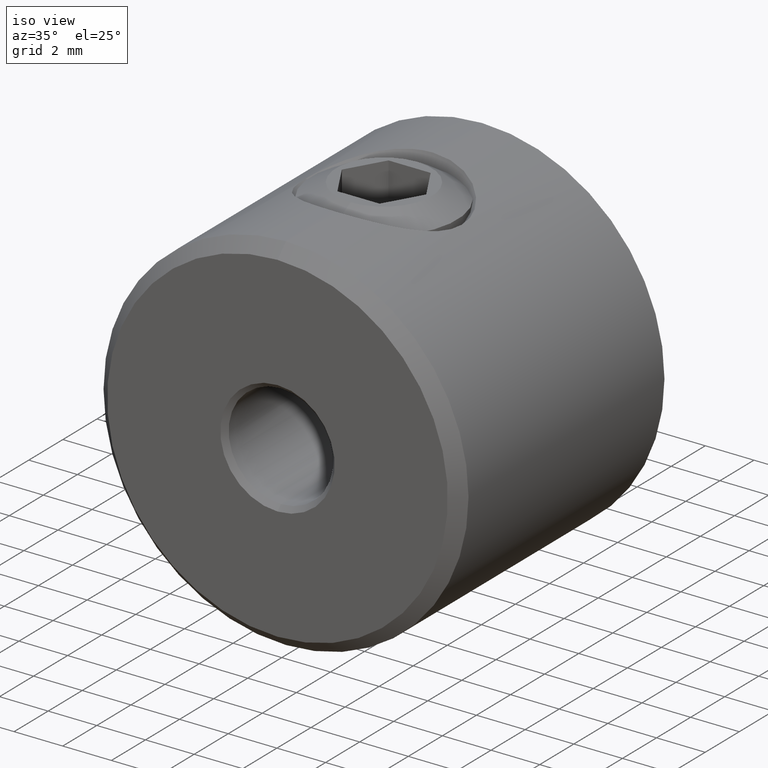
[diagram: clean part render]
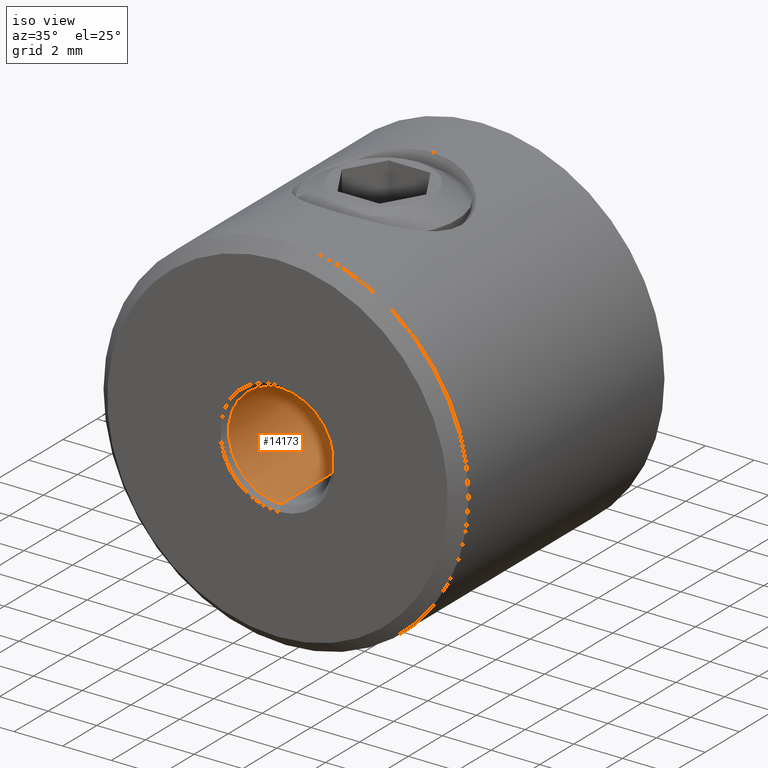
[diagram: same view with one face highlighted and labeled with its STEP entity id]
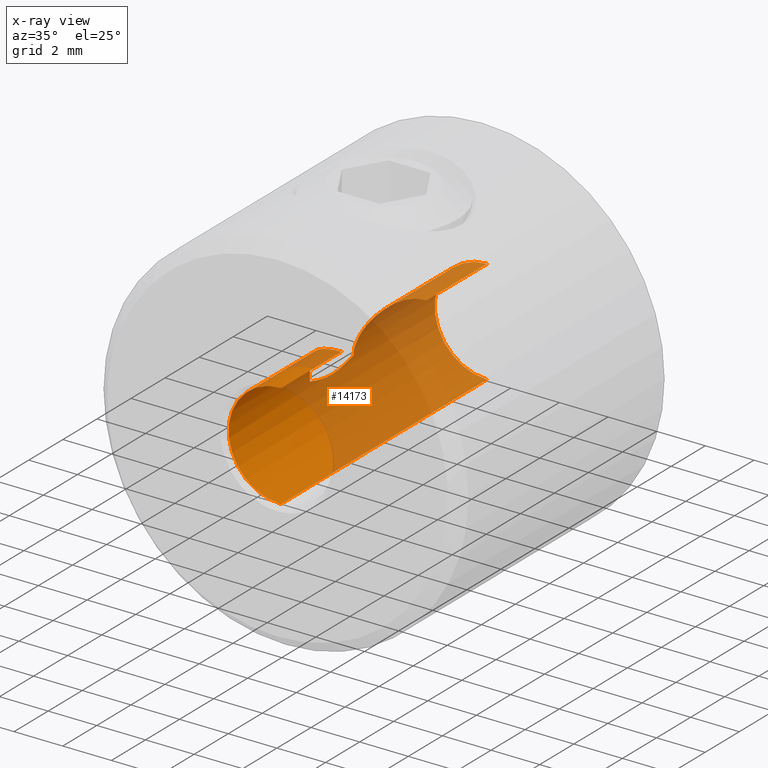
[diagram: x-ray of the same camera — body ghosted, the highlighted face saturated]
A machine part, iso view. The second image highlights one B-rep face of the part: STEP entity #14173.
The next image is the same camera in x-ray: the body ghosted, the highlighted face saturated — about 65% of this face is hidden behind the body in this view.
In plain terms, the highlighted cylindrical surface (partial cylindrical patch) has radius 2.15 mm, axis along (0, 1, 0).
Its self-contained STEP definition (entity closure, byte-faithful):
#385 = ORIENTED_EDGE ( 'NONE', *, *, #3057, .T. ) ;
#676 = ORIENTED_EDGE ( 'NONE', *, *, #3961, .T. ) ;
#988 = CARTESIAN_POINT ( 'NONE',  ( 2.632990618166809200E-016, -6.050000000000001600, -2.149999999999999900 ) ) ;
#1004 = CARTESIAN_POINT ( 'NONE',  ( -1.925094772295568500, -1.597348061521473900, 0.9668528837654856200 ) ) ;
#1033 = CARTESIAN_POINT ( 'NONE',  ( -0.7348609064993940600, 2.393686039498629900, 2.025643330185193500 ) ) ;
#1055 = CARTESIAN_POINT ( 'NONE',  ( -2.073432384459298100, -1.397848318693016800, 0.5869928898129031000 ) ) ;
#1357 = ORIENTED_EDGE ( 'NONE', *, *, #14928, .F. ) ;
#1378 = CARTESIAN_POINT ( 'NONE',  ( -2.139000041888230900, -0.2141850294312000700, -0.2172070987622273000 ) ) ;
#1596 = CARTESIAN_POINT ( 'NONE',  ( 2.632990618166809200E-016, -6.250000000000000000, -2.149999999999999900 ) ) ;
#1620 = EDGE_CURVE ( 'NONE', #12542, #15533, #3403, .T. ) ;
#1989 = CARTESIAN_POINT ( 'NONE',  ( 0.0000000000000000000, 6.050000000000001600, 0.0000000000000000000 ) ) ;
#2002 = LINE ( 'NONE', #7970, #8101 ) ;
#2053 = CARTESIAN_POINT ( 'NONE',  ( -2.133625432114932200, -1.304125872157222200, 0.3022002995495620100 ) ) ;
#2159 = CARTESIAN_POINT ( 'NONE',  ( -1.861254997223449300, -1.672288516034286200, 1.084149552491637600 ) ) ;
#2183 = CARTESIAN_POINT ( 'NONE',  ( -0.3032929259899027600, 2.485946836238646100, 2.133703790690577100 ) ) ;
#2208 = CARTESIAN_POINT ( 'NONE',  ( -1.534683074066103200E-019, -2.499999999999998200, 2.149999999999999900 ) ) ;
#2358 = CARTESIAN_POINT ( 'NONE',  ( -2.030406667663600100, 1.461125859006563200, 0.7197494875596474100 ) ) ;
#2406 = CARTESIAN_POINT ( 'NONE',  ( -2.133261416621418800, 1.304703684789853000, 0.3041509722993741000 ) ) ;
#2717 = EDGE_LOOP ( 'NONE', ( #14949, #13228, #676, #7683, #9670, #5769, #385, #1357 ) ) ;
#2732 = CARTESIAN_POINT ( 'NONE',  ( -2.147106445970275300, -0.8589273310922657100, -0.1180105889439460500 ) ) ;
#2887 = DIRECTION ( 'NONE',  ( -0.0000000000000000000, -1.000000000000000000, -0.0000000000000000000 ) ) ;
#3057 = EDGE_CURVE ( 'NONE', #7898, #5268, #13316, .T. ) ;
#3181 = CARTESIAN_POINT ( 'NONE',  ( 0.0000000000000000000, 6.050000000000001600, 2.149999999999999900 ) ) ;
#3281 = CARTESIAN_POINT ( 'NONE',  ( -0.9994511090636991600, -2.295882470373532300, 1.909079951299912600 ) ) ;
#3331 = CARTESIAN_POINT ( 'NONE',  ( -2.150000000000000400, -1.275735082217304100, 0.1537928784693634000 ) ) ;
#3371 = VERTEX_POINT ( 'NONE', #988 ) ;
#3403 = B_SPLINE_CURVE_WITH_KNOTS ( 'NONE', 3,
 ( #8488, #9619, #2183, #13215, #1033, #10674, #5915, #8435, #10728, #2358, #3640, #2406, #10845, #12070 ),
 .UNSPECIFIED., .F., .F.,
 ( 4, 2, 2, 2, 2, 2, 4 ),
 ( 0.003626857427847185500, 0.004079388854353354300, 0.004531920280859523200, 0.005436983133871860900, 0.006342045986884198600, 0.006794577413390367500, 0.007247108839896536400 ),
 .UNSPECIFIED. ) ;
#3434 = VECTOR ( 'NONE', #6657, 1000.000000000000000 ) ;
#3640 = CARTESIAN_POINT ( 'NONE',  ( -2.073504347843119000, 1.397725186231372000, 0.5864228892803885500 ) ) ;
#3800 = CARTESIAN_POINT ( 'NONE',  ( 2.632990618166809200E-016, 6.050000000000001600, -2.149999999999999900 ) ) ;
#3961 = EDGE_CURVE ( 'NONE', #4140, #8645, #6516, .T. ) ;
#4140 = VERTEX_POINT ( 'NONE', #3800 ) ;
#4487 = DIRECTION ( 'NONE',  ( 0.0000000000000000000, 1.000000000000000000, 0.0000000000000000000 ) ) ;
#4501 = CARTESIAN_POINT ( 'NONE',  ( -2.149999999999999900, -1.275735082217303000, 0.0000000000000000000 ) ) ;
#4611 = CARTESIAN_POINT ( 'NONE',  ( -1.120857853187716500, -2.238368832229897800, 1.839814015174059400 ) ) ;
#5102 = CYLINDRICAL_SURFACE ( 'NONE', #14484, 2.149999999999999900 ) ;
#5232 = CARTESIAN_POINT ( 'NONE',  ( 0.0000000000000000000, -6.050000000000001600, 0.0000000000000000000 ) ) ;
#5268 = VERTEX_POINT ( 'NONE', #15350 ) ;
#5616 = AXIS2_PLACEMENT_3D ( 'NONE', #1989, #4487, #8116 ) ;
#5673 = CARTESIAN_POINT ( 'NONE',  ( -0.1506947970163635100, -2.499999999999999100, 2.150000000000000800 ) ) ;
#5769 = ORIENTED_EDGE ( 'NONE', *, *, #5937, .T. ) ;
#5915 = CARTESIAN_POINT ( 'NONE',  ( -1.356577628608072400, 2.112901725161469900, 1.688750181768103400 ) ) ;
#5937 = EDGE_CURVE ( 'NONE', #15533, #7898, #11051, .T. ) ;
#6001 = CARTESIAN_POINT ( 'NONE',  ( 0.0000000000000000000, -6.250000000000000000, 0.0000000000000000000 ) ) ;
#6516 = CIRCLE ( 'NONE', #5616, 2.149999999999999900 ) ;
#6657 = DIRECTION ( 'NONE',  ( -0.0000000000000000000, 1.000000000000000000, -0.0000000000000000000 ) ) ;
#6934 = CARTESIAN_POINT ( 'NONE',  ( -1.633930095200460100, -1.895808714738955700, 1.403707909107325900 ) ) ;
#6975 = CARTESIAN_POINT ( 'NONE',  ( -2.149999999999999900, 0.8630632229863820500, -0.1265316249699096600 ) ) ;
#7188 = AXIS2_PLACEMENT_3D ( 'NONE', #5232, #2887, #15075 ) ;
#7292 = LINE ( 'NONE', #1596, #12921 ) ;
#7683 = ORIENTED_EDGE ( 'NONE', *, *, #12364, .F. ) ;
#7743 = CARTESIAN_POINT ( 'NONE',  ( -2.149999999999999900, -1.275735082217303000, 0.0000000000000000000 ) ) ;
#7898 = VERTEX_POINT ( 'NONE', #7743 ) ;
#7962 = CARTESIAN_POINT ( 'NONE',  ( 1.534683074066103200E-019, 2.499999999999998200, 2.149999999999999900 ) ) ;
#7970 = CARTESIAN_POINT ( 'NONE',  ( 0.0000000000000000000, -6.250000000000000000, 2.149999999999999900 ) ) ;
#8101 = VECTOR ( 'NONE', #12649, 1000.000000000000000 ) ;
#8116 = DIRECTION ( 'NONE',  ( 0.0000000000000000000, 0.0000000000000000000, 1.000000000000000000 ) ) ;
#8129 = CARTESIAN_POINT ( 'NONE',  ( -0.3035271358532746800, -2.485936835032056100, 2.133692548175958800 ) ) ;
#8207 = VERTEX_POINT ( 'NONE', #9727 ) ;
#8344 = DIRECTION ( 'NONE',  ( 0.0000000000000000000, 0.0000000000000000000, 1.000000000000000000 ) ) ;
#8420 = EDGE_CURVE ( 'NONE', #3371, #4140, #7292, .T. ) ;
#8435 = CARTESIAN_POINT ( 'NONE',  ( -1.724806660935309900, 1.824746159065254100, 1.310428182410196000 ) ) ;
#8488 = CARTESIAN_POINT ( 'NONE',  ( 1.534683074066103200E-019, 2.499999999999998200, 2.149999999999999900 ) ) ;
#8645 = VERTEX_POINT ( 'NONE', #3181 ) ;
#8752 = CARTESIAN_POINT ( 'NONE',  ( -2.141480535074975900, -0.4329430049667804500, -0.1950735946380157400 ) ) ;
#9323 = CARTESIAN_POINT ( 'NONE',  ( -2.149999999999999900, 1.275735082217303000, 0.0000000000000000000 ) ) ;
#9382 = CARTESIAN_POINT ( 'NONE',  ( -1.345136824093966300, -2.111213935302910900, 1.682808623091129900 ) ) ;
#9484 = CARTESIAN_POINT ( 'NONE',  ( -0.5954120746587005000, -2.432590210314739200, 2.071293574965058500 ) ) ;
#9619 = CARTESIAN_POINT ( 'NONE',  ( -0.1504203191165433600, 2.499999999999998700, 2.149999999999999900 ) ) ;
#9670 = ORIENTED_EDGE ( 'NONE', *, *, #1620, .T. ) ;
#9727 = CARTESIAN_POINT ( 'NONE',  ( 0.0000000000000000000, -6.050000000000001600, 2.149999999999999900 ) ) ;
#10532 = CARTESIAN_POINT ( 'NONE',  ( -2.031087096408396200, -1.460204067508870100, 0.7179690717354574300 ) ) ;
#10562 = CARTESIAN_POINT ( 'NONE',  ( -2.149999999999999900, -1.275735082217303000, 0.0000000000000000000 ) ) ;
#10607 = EDGE_CURVE ( 'NONE', #8207, #3371, #14161, .T. ) ;
#10646 = CARTESIAN_POINT ( 'NONE',  ( -1.715908765832581600, -1.821119477927883200, 1.302039755228690000 ) ) ;
#10674 = CARTESIAN_POINT ( 'NONE',  ( -1.130353194561114500, 2.247513133645970800, 1.851433895023591100 ) ) ;
#10728 = CARTESIAN_POINT ( 'NONE',  ( -1.872107930195030100, 1.665824704313992400, 1.090905193608320100 ) ) ;
#10845 = CARTESIAN_POINT ( 'NONE',  ( -2.149999999999999900, 1.275735082217303300, 0.1534745132368854900 ) ) ;
#10877 = DIRECTION ( 'NONE',  ( -0.0000000000000000000, 1.000000000000000000, -0.0000000000000000000 ) ) ;
#11051 = B_SPLINE_CURVE_WITH_KNOTS ( 'NONE', 3,
 ( #9323, #6975, #14714, #1378, #8752, #2732, #12901, #10562 ),
 .UNSPECIFIED., .F., .F.,
 ( 4, 2, 2, 4 ),
 ( 0.0004669633346895036900, 0.001755633770039169100, 0.002399968987714002300, 0.003044304205388833800 ),
 .UNSPECIFIED. ) ;
#11141 = CARTESIAN_POINT ( 'NONE',  ( 0.0000000000000000000, -6.250000000000000000, 2.149999999999999900 ) ) ;
#11277 = DIRECTION ( 'NONE',  ( -0.0000000000000000000, 1.000000000000000000, -0.0000000000000000000 ) ) ;
#11342 = FACE_OUTER_BOUND ( 'NONE', #2717, .T. ) ;
#11878 = CARTESIAN_POINT ( 'NONE',  ( -1.448830986109931100, -2.040761380605209000, 1.594055276262391200 ) ) ;
#12070 = CARTESIAN_POINT ( 'NONE',  ( -2.149999999999999900, 1.275735082217303000, 0.0000000000000000000 ) ) ;
#12364 = EDGE_CURVE ( 'NONE', #12542, #8645, #2002, .T. ) ;
#12542 = VERTEX_POINT ( 'NONE', #7962 ) ;
#12649 = DIRECTION ( 'NONE',  ( -0.0000000000000000000, 1.000000000000000000, -0.0000000000000000000 ) ) ;
#12901 = CARTESIAN_POINT ( 'NONE',  ( -2.149999999999999900, -1.068353932954112300, -0.06358629312234154200 ) ) ;
#12921 = VECTOR ( 'NONE', #11277, 1000.000000000000000 ) ;
#13215 = CARTESIAN_POINT ( 'NONE',  ( -0.5945761450907488500, 2.432775673844482800, 2.071510963777859300 ) ) ;
#13228 = ORIENTED_EDGE ( 'NONE', *, *, #8420, .T. ) ;
#13316 = B_SPLINE_CURVE_WITH_KNOTS ( 'NONE', 3,
 ( #4501, #3331, #2053, #1055, #10532, #1004, #2159, #10646, #6934, #11878, #9382, #4611, #3281, #15525, #9484, #8129, #5673, #2208 ),
 .UNSPECIFIED., .F., .F.,
 ( 4, 2, 2, 2, 2, 2, 2, 2, 4 ),
 ( 1.347778712223222000E-019, 0.0004533571784808981800, 0.0009067143569617962600, 0.001360071535442694500, 0.001813428713923592900, 0.002266785892404491300, 0.002720143070885389100, 0.003173500249366287300, 0.003626857427847185500 ),
 .UNSPECIFIED. ) ;
#14161 = CIRCLE ( 'NONE', #7188, 2.149999999999999900 ) ;
#14173 = ADVANCED_FACE ( 'NONE', ( #11342 ), #5102, .F. ) ;
#14392 = CARTESIAN_POINT ( 'NONE',  ( -2.149999999999999900, 1.275735082217303000, 0.0000000000000000000 ) ) ;
#14484 = AXIS2_PLACEMENT_3D ( 'NONE', #6001, #10877, #8344 ) ;
#14629 = LINE ( 'NONE', #11141, #3434 ) ;
#14714 = CARTESIAN_POINT ( 'NONE',  ( -2.139097144838437300, 0.4429852074895094800, -0.2162494317825635100 ) ) ;
#14928 = EDGE_CURVE ( 'NONE', #8207, #5268, #14629, .T. ) ;
#14949 = ORIENTED_EDGE ( 'NONE', *, *, #10607, .T. ) ;
#15075 = DIRECTION ( 'NONE',  ( 0.0000000000000000000, 0.0000000000000000000, 1.000000000000000000 ) ) ;
#15350 = CARTESIAN_POINT ( 'NONE',  ( -1.534683074066103200E-019, -2.499999999999998200, 2.149999999999999900 ) ) ;
#15525 = CARTESIAN_POINT ( 'NONE',  ( -0.7342969976687251400, -2.393906171175434600, 2.025906389515229400 ) ) ;
#15533 = VERTEX_POINT ( 'NONE', #14392 ) ;